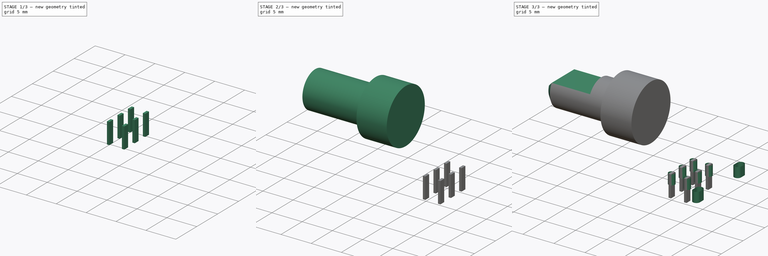
[diagram: build sequence overview — one tinted view per stage of 3, left to right]
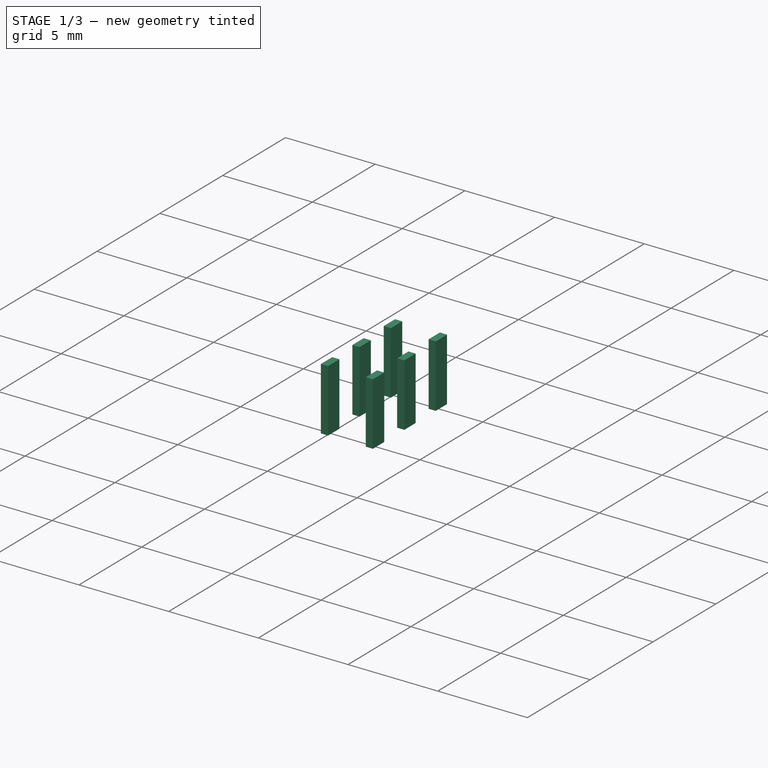
[diagram: stage 1 of 3 — iso view after this stage's code; geometry added in this stage tinted green]
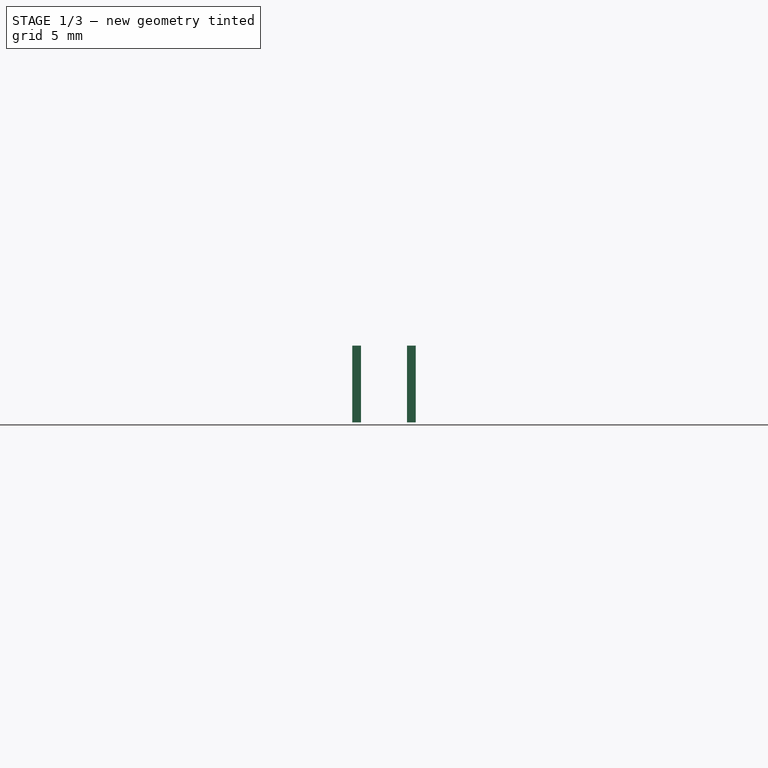
[diagram: stage 1 of 3 — front view after this stage's code; geometry added in this stage tinted green]
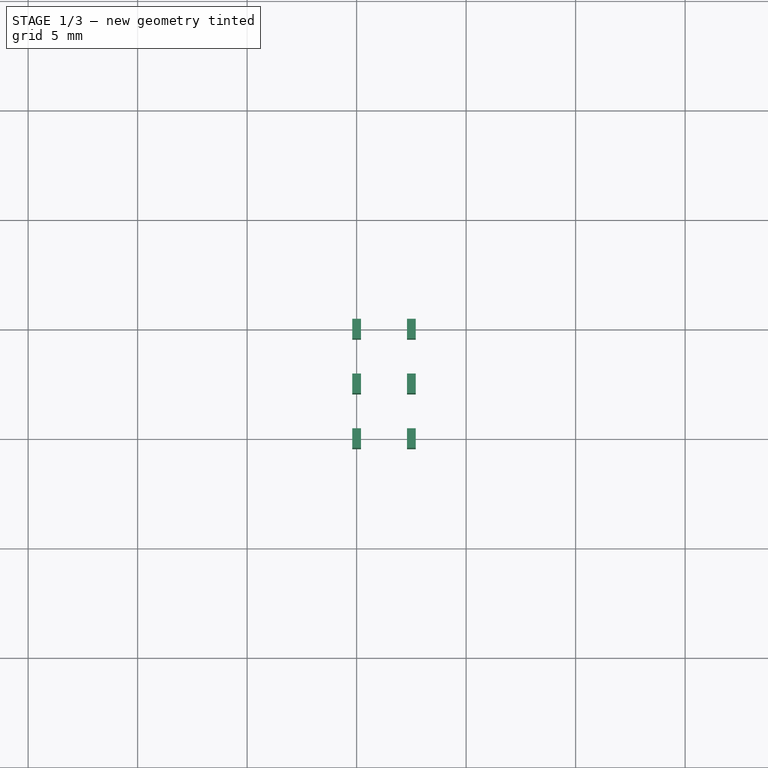
[diagram: stage 1 of 3 — top view after this stage's code; geometry added in this stage tinted green]
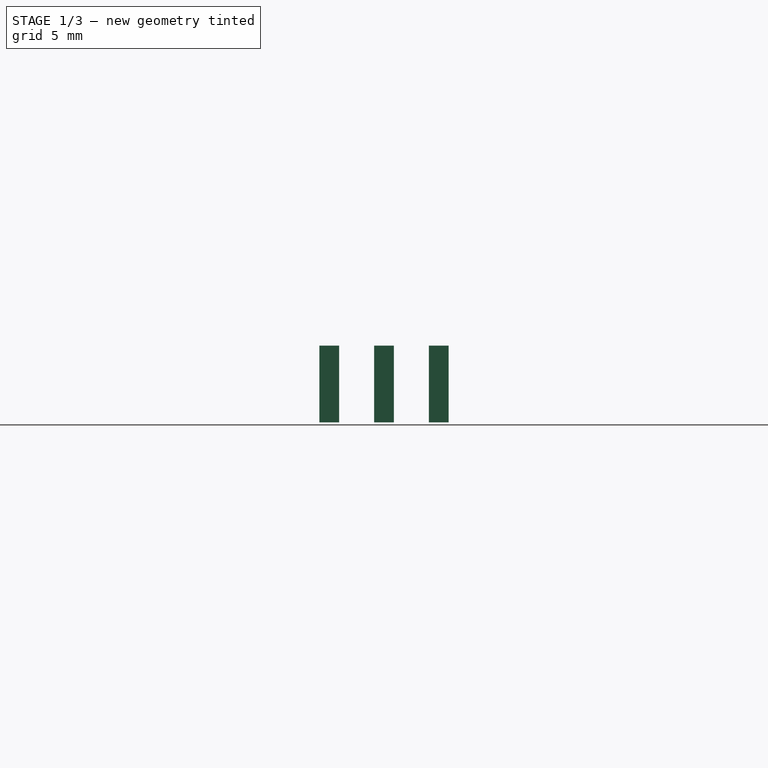
[diagram: stage 1 of 3 — right view after this stage's code; geometry added in this stage tinted green]
FCSTD DOCUMENT  (FreeCAD 0.21R33694 (Git))
Label: Potentiometer-THT-Alps-RK09L
License: All rights reserved
LicenseURL: https://en.wikipedia.org/wiki/All_rights_reserved
objects: Part::Feature×14, Sketcher::SketchObject×8, PartDesign::Pad×4, PartDesign::Body×3, PartDesign::ShapeBinder×2, Part::Compound×1, App::DocumentObjectGroup×1, PartDesign::Pocket×1, PartDesign::Chamfer×1, Part::FeaturePython×1
note: 40 computed .brp shape members not serialized (recipe doc carries the construction recipe); baked Part::Feature solids carry a one-line shape summary decoded from their .brp

FEATURE [Part::Feature] Shape001  label="topPads"
  Placement = pos=(0,0,-0.01) rot=(0,0,1;0rad)
  shape: bbox 7.7 x 12.5 x 0.01 mm, 63 faces, 8 solids (baked)
FEATURE [Part::Feature] Shape002  label="btmPads"
  Placement = pos=(0,0,-1.6) rot=(0,0,1;0rad)
  shape: bbox 7.7 x 12.5 x 0.01 mm, 63 faces, 8 solids (baked)
FEATURE [Part::Feature] Shape  label="F.SilkS_outline_"
  Placement = pos=(0,0,0.01) rot=(0,0,1;0rad)
  shape: bbox 24.5 x 12.46 x 2e-07 mm, 0 faces, 0 solids (baked)
FEATURE [Sketcher::SketchObject] _F_SilkS__sketch  label="F.SilkS_"
  FullyConstrained = false
  Placement = pos=(0,0,0.01) rot=(0,0,1;0rad)
  sketch-geometry (10):
    g0: LineSegment StartX=-20.12 StartY=-5.62 StartZ=0 EndX=-20.12 EndY=0.62 EndZ=0
    g1: LineSegment StartX=-10.12 StartY=0.62 StartZ=0 EndX=-20.12 EndY=0.62 EndZ=0
    g2: LineSegment StartX=-10.12 StartY=-5.62 StartZ=0 EndX=-20.12 EndY=-5.62 EndZ=0
    g3: LineSegment StartX=-10.12 StartY=-7.12 StartZ=0 EndX=-10.12 EndY=2.12 EndZ=0
    g4: LineSegment StartX=-5.12 StartY=2.12 StartZ=0 EndX=-10.12 EndY=2.12 EndZ=0
    g5: LineSegment StartX=-5.12 StartY=-7.12 StartZ=0 EndX=-10.12 EndY=-7.12 EndZ=0
    g6: LineSegment StartX=-5.12 StartY=-8.67 StartZ=0 EndX=-5.12 EndY=3.67 EndZ=0
    g7: LineSegment StartX=3.759 StartY=3.67 StartZ=0 EndX=-5.12 EndY=3.67 EndZ=0
    g8: LineSegment StartX=3.759 StartY=-8.67 StartZ=0 EndX=-5.12 EndY=-8.67 EndZ=0
    g9: LineSegment StartX=4.261 StartY=-4.894 StartZ=0 EndX=4.261 EndY=-0.105 EndZ=0
FEATURE [Part::Feature] Shape003  label="F.CrtYd_outline_"
  Placement = pos=(0,0,0.01) rot=(0,0,1;0rad)
  shape: bbox 28.45 x 14.25 x 2e-07 mm, 0 faces, 0 solids (baked)
FEATURE [Sketcher::SketchObject] _F_CrtYd__sketch  label="F.CrtYd_"
  FullyConstrained = false
  Placement = pos=(0,0,0.01) rot=(0,0,1;0rad)
  sketch-geometry (4):
    g0: LineSegment StartX=-20.25 StartY=4.6 StartZ=0 EndX=-20.25 EndY=-9.6 EndZ=0
    g1: LineSegment StartX=-20.25 StartY=-9.6 StartZ=0 EndX=8.15 EndY=-9.6 EndZ=0
    g2: LineSegment StartX=8.15 StartY=4.6 StartZ=0 EndX=-20.25 EndY=4.6 EndZ=0
    g3: LineSegment StartX=8.15 StartY=-9.6 StartZ=0 EndX=8.15 EndY=4.6 EndZ=0
FEATURE [Part::Feature] Shape004  label="F.Fab_outline_"
  Placement = pos=(0,0,0.01) rot=(0,0,1;0rad)
  shape: bbox 24.24 x 12.2 x 2e-07 mm, 0 faces, 0 solids (baked)
FEATURE [Sketcher::SketchObject] _F_Fab__sketch  label="F.Fab_"
  FullyConstrained = false
  Placement = pos=(0,0,0.01) rot=(0,0,1;0rad)
  sketch-geometry (10):
    g0: LineSegment StartX=-20 StartY=0.5 StartZ=0 EndX=-20 EndY=-5.5 EndZ=0
    g1: LineSegment StartX=-20 StartY=-5.5 StartZ=0 EndX=-10 EndY=-5.5 EndZ=0
    g2: LineSegment StartX=-10 StartY=2 StartZ=0 EndX=-10 EndY=-7 EndZ=0
    g3: LineSegment StartX=-10 StartY=0.5 StartZ=0 EndX=-20 EndY=0.5 EndZ=0
    g4: LineSegment StartX=-10 StartY=-7 StartZ=0 EndX=-5 EndY=-7 EndZ=0
    g5: LineSegment StartX=-5 StartY=3.55 StartZ=0 EndX=-5 EndY=-8.55 EndZ=0
    g6: LineSegment StartX=-5 StartY=2 StartZ=0 EndX=-10 EndY=2 EndZ=0
    g7: LineSegment StartX=-5 StartY=-8.55 StartZ=0 EndX=4.14 EndY=-8.55 EndZ=0
    g8: LineSegment StartX=4.14 StartY=3.55 StartZ=0 EndX=-5 EndY=3.55 EndZ=0
    g9: LineSegment StartX=4.14 StartY=-8.55 StartZ=0 EndX=4.14 EndY=3.55 EndZ=0
FEATURE [Part::Feature] PCB
  shape: bbox 42.68 x 21.38 x 1.58 mm, 28 faces (baked)
FEATURE [App::DocumentObjectGroup] Group  label=""Potentiometer_Alps_RK09L_Double_Horizontal"-fp"
  Group = -> [Shape001,Shape002,annulars,_F_SilkS__sketch,Shape,_F_CrtYd__sketch,Shape003,_F_Fab__sketch,Shape004,PCB]
FEATURE [Sketcher::SketchObject] Sketch  label="Main body"
  FullyConstrained = true
  MapMode = 5
  Support = -> [XY_Plane]
  expr: Constraints[10] = 10.7 / 2 - 5 / 2
  expr: Constraints[12] = 2.5 + 3.3
  expr: Constraints[13] = 12.4 - 1.5
  sketch-geometry (5):
    g0: LineSegment StartX=-5.1 StartY=2.85 StartZ=0 EndX=4.05 EndY=2.85 EndZ=0
    g1: LineSegment StartX=4.05 StartY=2.85 StartZ=0 EndX=4.05 EndY=-7.85 EndZ=0
    g2: LineSegment StartX=4.05 StartY=-7.85 StartZ=0 EndX=-5.1 EndY=-7.85 EndZ=0
    g3: LineSegment StartX=-5.1 StartY=-7.85 StartZ=0 EndX=-5.1 EndY=2.85 EndZ=0
    g4: LineSegment StartX=5.8 StartY=7 StartZ=0 EndX=5.8 EndY=-11 EndZ=0
  constraints (16):
    c: Coincident(g0,g1)
    c: Coincident(g1,g2)
    c: Coincident(g2,g3)
    c: Coincident(g3,g0)
    c: Horizontal(g0)
    c: Horizontal(g2)
    c: Vertical(g1)
    c: Vertical(g3)
    c: DistanceY(g3,g3) = 10.7
    c: DistanceX(g0,g0) = 9.15
    c: DistanceY(g-1,g0) = 2.85
    c: Vertical(g4)
    c: DistanceX(g-1,g4) = 5.8
    c: DistanceX(g0,g4) = 10.9
    c: DistanceY(g4,g4) = 18
    c: DistanceY(g-1,g4) = 7
FEATURE [PartDesign::Pad] Pad
  Direction = (0,0,1)
  Length = 11.35
  Length2 = 10
  Profile = -> Sketch
  ReferenceAxis = -> Sketch [N_Axis]
  Type = 0
  expr: Length = 6.5 + 4.85
FEATURE [PartDesign::Body] Body001  label="Shaft and mounting thread"
  Group = -> [ShapeBinder,Sketch001,Pad001,Sketch002,Pad002,Sketch003,Pocket,Chamfer]
  Origin = -> Origin001
  Tip = -> Chamfer
FEATURE [PartDesign::ShapeBinder] ShapeBinder001
  Support = -> [Pad]
  TraceSupport = false
FEATURE [Sketcher::SketchObject] Sketch004
  FullyConstrained = true
  MapMode = 5
  Placement = pos=(0,0,0) rot=(1,0,0;3.14159rad)
  Support = -> [ShapeBinder001]
  expr: Constraints[10] = 0.4 / 2
  expr: Constraints[11] = 0.9 / 2
  sketch-geometry (4):
    g0: LineSegment StartX=-0.2 StartY=0.45 StartZ=0 EndX=0.2 EndY=0.45 EndZ=0
    g1: LineSegment StartX=0.2 StartY=0.45 StartZ=0 EndX=0.2 EndY=-0.45 EndZ=0
    g2: LineSegment StartX=0.2 StartY=-0.45 StartZ=0 EndX=-0.2 EndY=-0.45 EndZ=0
    g3: LineSegment StartX=-0.2 StartY=-0.45 StartZ=0 EndX=-0.2 EndY=0.45 EndZ=0
  constraints (12):
    c: Coincident(g0,g1)
    c: Coincident(g1,g2)
    c: Coincident(g2,g3)
    c: Coincident(g3,g0)
    c: Horizontal(g0)
    c: Horizontal(g2)
    c: Vertical(g1)
    c: Vertical(g3)
    c: DistanceY(g1,g1) = 0.9
    c: DistanceX(g2,g2) = 0.4
    c: DistanceX(g-1,g1) = 0.2
    c: DistanceY(g1,g-1) = 0.45
FEATURE [PartDesign::Pad] Pad003
  Direction = (0,0,-1)
  Length = 3.5
  Length2 = 10
  Profile = -> Sketch004
  ReferenceAxis = -> Sketch004 [N_Axis]
  Type = 0
FEATURE [PartDesign::Body] Body002  label="Pin1"
  Group = -> [ShapeBinder001,Sketch004,Pad003]
  Origin = -> Origin002
  Tip = -> Pad003
FEATURE [Part::FeaturePython] Array  label="Pins"  # Draft array (typed FeaturePython)
  AlwaysSyncPlacement = false
  Angle = 360
  ArrayType = 0
  Axis = (0,0,1)
  Base = -> Pad003
  Center = (0,0,0)
  Count = 6
  ExpandArray = false
  Fuse = false
  IntervalAxis = (0,0,0)
  IntervalX = (2.5,0,0)
  IntervalY = (0,-2.5,0)
  IntervalZ = (0,0,100)
  NumberCircles = 3
  NumberPolar = 5
  NumberX = 2
  NumberY = 3
  NumberZ = 1
  PlacementList = 6 placements: [(0,0,0),(0,-2.5,0),(0,-5,0),(2.5,0,0),(2.5,-2.5,0),(2.5,-5,0)]
  RadialDistance = 50
  ScaleList = (6) [(1,1,1),(1,1,1),(1,1,1),(1,1,1),(1,1,1),(1,1,1)]
  Symmetry = 1
  TangentialDistance = 25
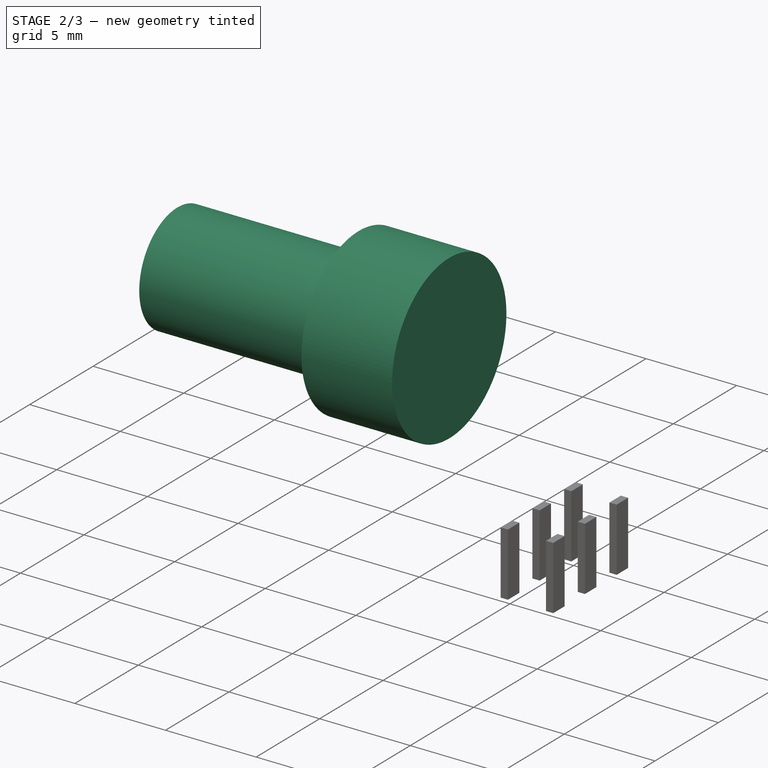
[diagram: stage 2 of 3 — iso view after this stage's code; geometry added in this stage tinted green]
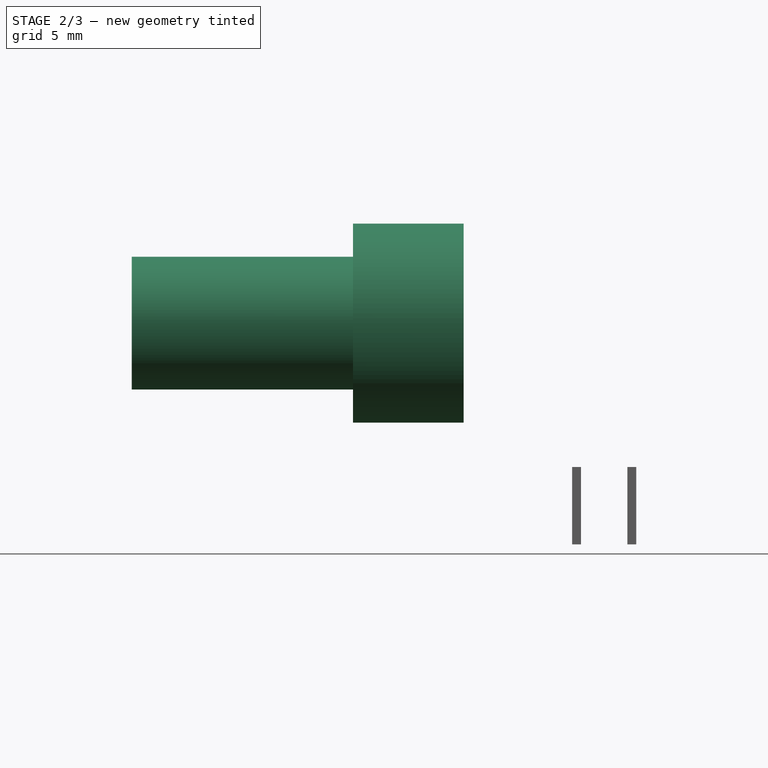
[diagram: stage 2 of 3 — front view after this stage's code; geometry added in this stage tinted green]
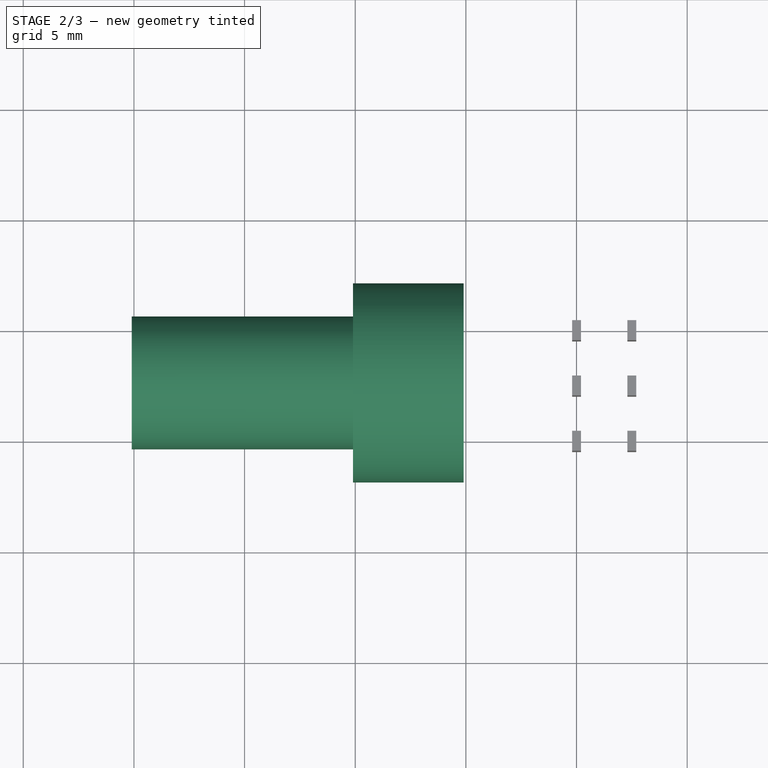
[diagram: stage 2 of 3 — top view after this stage's code; geometry added in this stage tinted green]
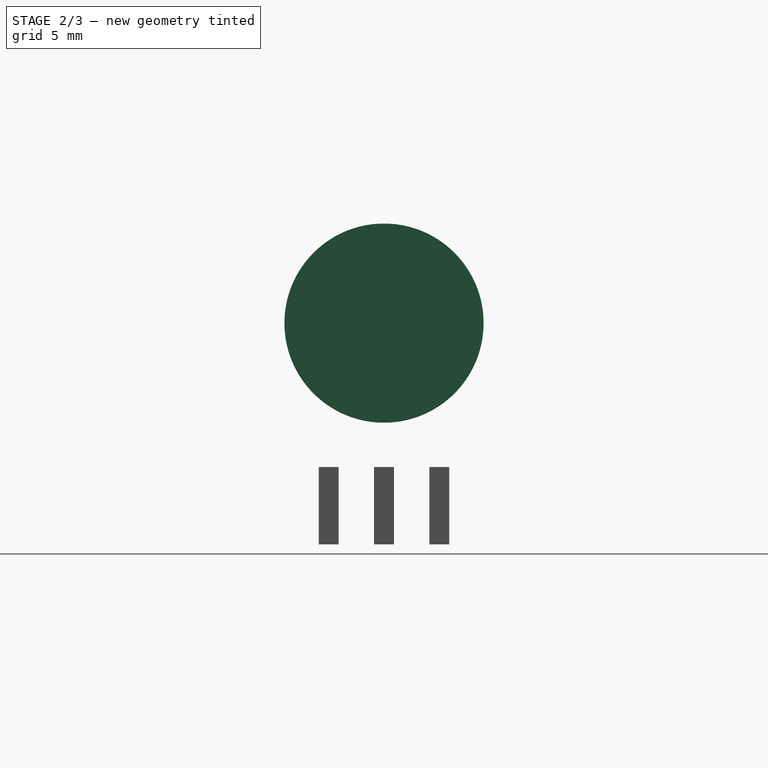
[diagram: stage 2 of 3 — right view after this stage's code; geometry added in this stage tinted green]
FEATURE [PartDesign::Body] Body
  Group = -> [Sketch,Pad]
  Origin = -> Origin
  Tip = -> Pad
FEATURE [PartDesign::ShapeBinder] ShapeBinder
  Support = -> [Pad]
  TraceSupport = false
FEATURE [Sketcher::SketchObject] Sketch001  label="Mounting thread"
  ExternalGeometry = -> [ShapeBinder]
  FullyConstrained = true
  MapMode = 5
  Placement = pos=(-5.1,0,0) rot=(0.57735,-0.57735,-0.57735;2.0944rad)
  Support = -> [ShapeBinder]
  expr: Constraints[0] = 10.7 / 2
  sketch-geometry (1):
    g0: Circle CenterX=2.5 CenterY=6.5 CenterZ=0 NormalX=0 NormalY=0 NormalZ=1 AngleXU=0 Radius=4.5
  constraints (3):
    c: DistanceX(g0,g-3) = 5.35
    c: DistanceY(g0,g-3) = 4.85
    c: Diameter(g0) = 9
FEATURE [PartDesign::Pad] Pad001
  Direction = (-1,0,0)
  Length = 5
  Length2 = 10
  Profile = -> Sketch001
  ReferenceAxis = -> Sketch001 [N_Axis]
  Type = 0
FEATURE [Sketcher::SketchObject] Sketch002  label="Shaft"
  ExternalGeometry = -> [Pad001]
  FullyConstrained = true
  MapMode = 5
  Placement = pos=(-10.1,0,0) rot=(0.57735,-0.57735,-0.57735;2.0944rad)
  Support = -> [Pad001]
  sketch-geometry (1):
    g0: Circle CenterX=2.5 CenterY=6.5 CenterZ=0 NormalX=0 NormalY=0 NormalZ=1 AngleXU=0 Radius=3
  constraints (2):
    c: Diameter(g0) = 6
    c: Coincident(g0,g-3)
FEATURE [PartDesign::Pad] Pad002
  BaseFeature = -> Pad001
  Direction = (-1,0,0)
  Length = 10
  Length2 = 10
  Profile = -> Sketch002
  ReferenceAxis = -> Sketch002 [N_Axis]
  Type = 0
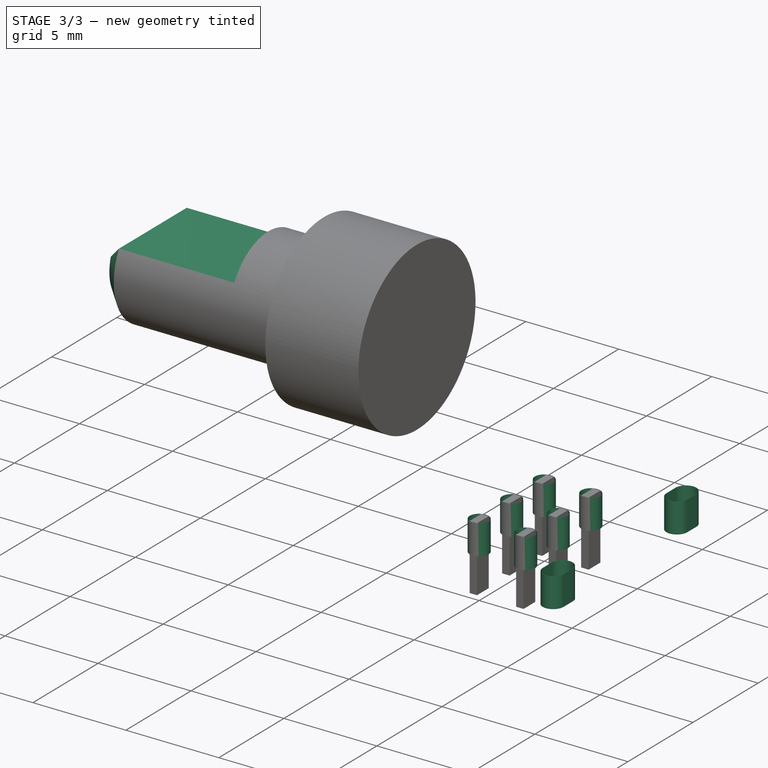
[diagram: stage 3 of 3 — iso view after this stage's code; geometry added in this stage tinted green]
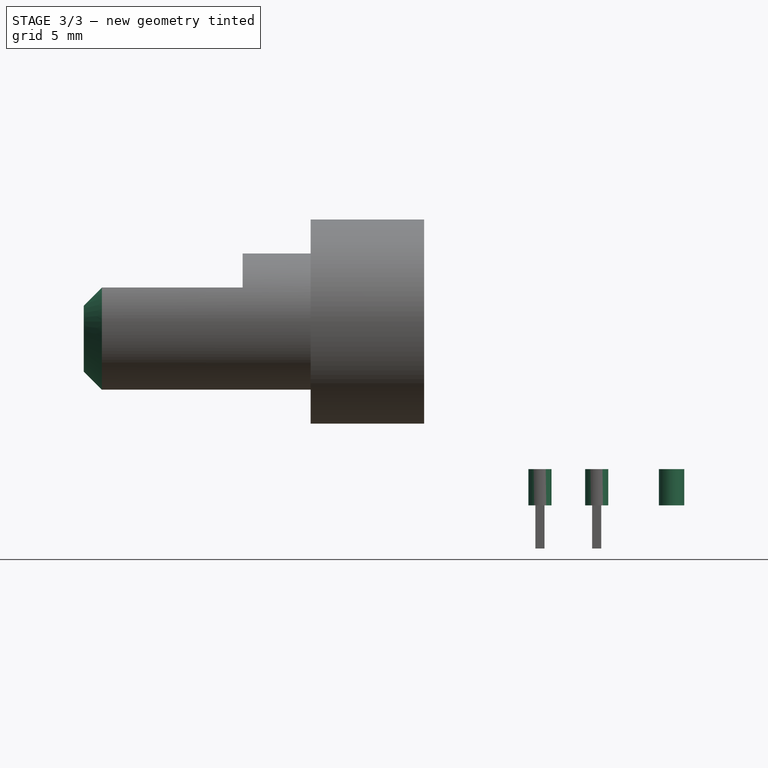
[diagram: stage 3 of 3 — front view after this stage's code; geometry added in this stage tinted green]
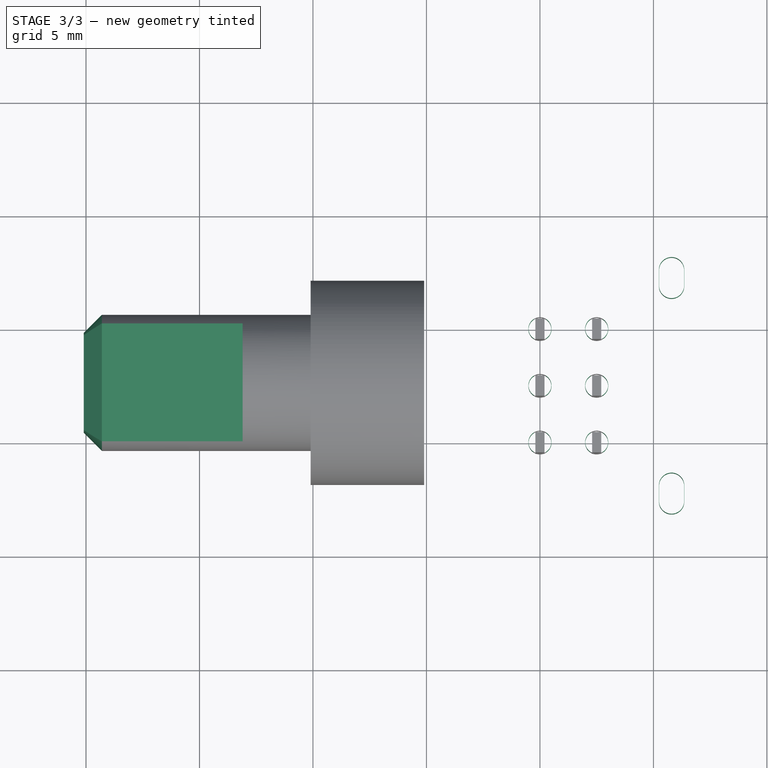
[diagram: stage 3 of 3 — top view after this stage's code; geometry added in this stage tinted green]
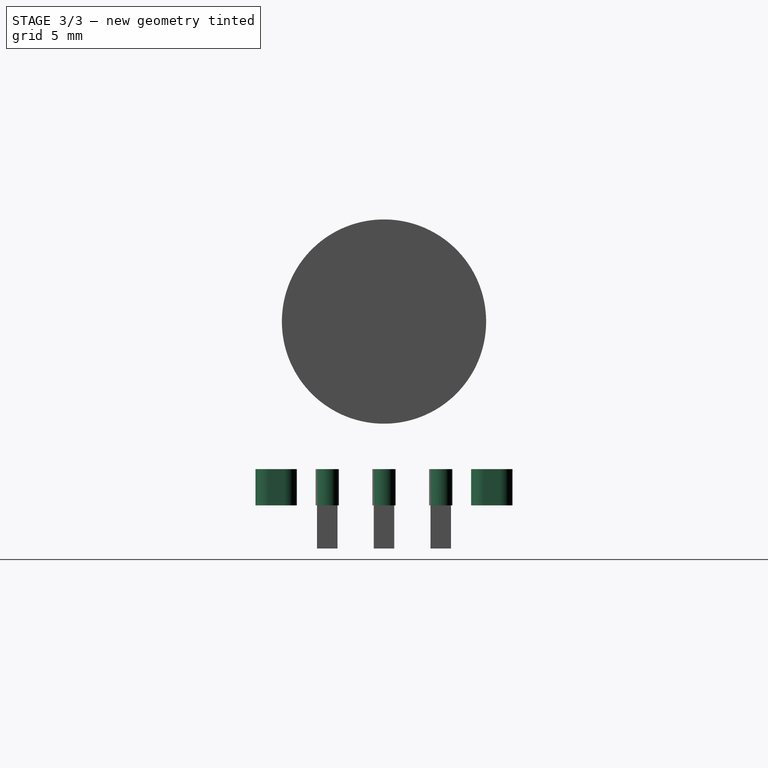
[diagram: stage 3 of 3 — right view after this stage's code; geometry added in this stage tinted green]
FEATURE [Part::Feature] anr_  label="drill_000"
  shape: bbox 1.12 x 1.82 x 1.6 mm, 10 faces (baked)
FEATURE [Part::Feature] anr_001  label="drill_001"
  shape: bbox 1.12 x 1.82 x 1.6 mm, 10 faces (baked)
FEATURE [Part::Feature] anr_002  label="drill_002"
  shape: bbox 1.02 x 1.02 x 1.6 mm, 4 faces (baked)
FEATURE [Part::Feature] anr_003  label="drill_003"
  shape: bbox 1.02 x 1.02 x 1.6 mm, 4 faces (baked)
FEATURE [Part::Feature] anr_004  label="drill_004"
  shape: bbox 1.02 x 1.02 x 1.6 mm, 4 faces (baked)
FEATURE [Part::Feature] anr_005  label="drill_005"
  shape: bbox 1.02 x 1.02 x 1.6 mm, 4 faces (baked)
FEATURE [Part::Feature] anr_006  label="drill_006"
  shape: bbox 1.02 x 1.02 x 1.6 mm, 4 faces (baked)
FEATURE [Part::Feature] anr_007  label="drill_007"
  shape: bbox 1.02 x 1.02 x 1.6 mm, 4 faces (baked)
FEATURE [Part::Compound] annulars  label="TH-Drills"
  Links = -> [anr_,anr_001,anr_002,anr_003,anr_004,anr_005,anr_006,anr_007]
FEATURE [Sketcher::SketchObject] Sketch003
  ExternalGeometry = -> [Pad002]
  FullyConstrained = true
  MapMode = 5
  Placement = pos=(-20.1,0,0) rot=(0.57735,-0.57735,-0.57735;2.0944rad)
  Support = -> [Pad002]
  expr: Constraints[11] = 9 / 2
  expr: Constraints[9] = 4.5 - 6 / 2
  sketch-geometry (4):
    g0: LineSegment StartX=-2 StartY=11 StartZ=0 EndX=7 EndY=11 EndZ=0
    g1: LineSegment StartX=7 StartY=11 StartZ=0 EndX=7 EndY=8 EndZ=0
    g2: LineSegment StartX=7 StartY=8 StartZ=0 EndX=-2 EndY=8 EndZ=0
    g3: LineSegment StartX=-2 StartY=8 StartZ=0 EndX=-2 EndY=11 EndZ=0
  constraints (12):
    c: Coincident(g0,g1)
    c: Coincident(g1,g2)
    c: Coincident(g2,g3)
    c: Coincident(g3,g0)
    c: Horizontal(g0)
    c: Horizontal(g2)
    c: Vertical(g1)
    c: Vertical(g3)
    c: DistanceY(g1,g1) = 3
    c: DistanceY(g-3,g1) = 1.5
    c: DistanceX(g0,g0) = 9
    c: DistanceX(g2,g-3) = 4.5
FEATURE [PartDesign::Pocket] Pocket
  BaseFeature = -> Pad002
  Direction = (1,0,0)
  Length = 7
  Length2 = 5
  Profile = -> Sketch003
  ReferenceAxis = -> Sketch003 [N_Axis]
  Type = 0
FEATURE [PartDesign::Chamfer] Chamfer
  Angle = 45
  Base = -> Pocket [Face5]
  BaseFeature = -> Pocket
  ChamferType = 0
  FlipDirection = false
  Size = 0.8
  Size2 = 1
  SupportTransform = false
  UseAllEdges = false
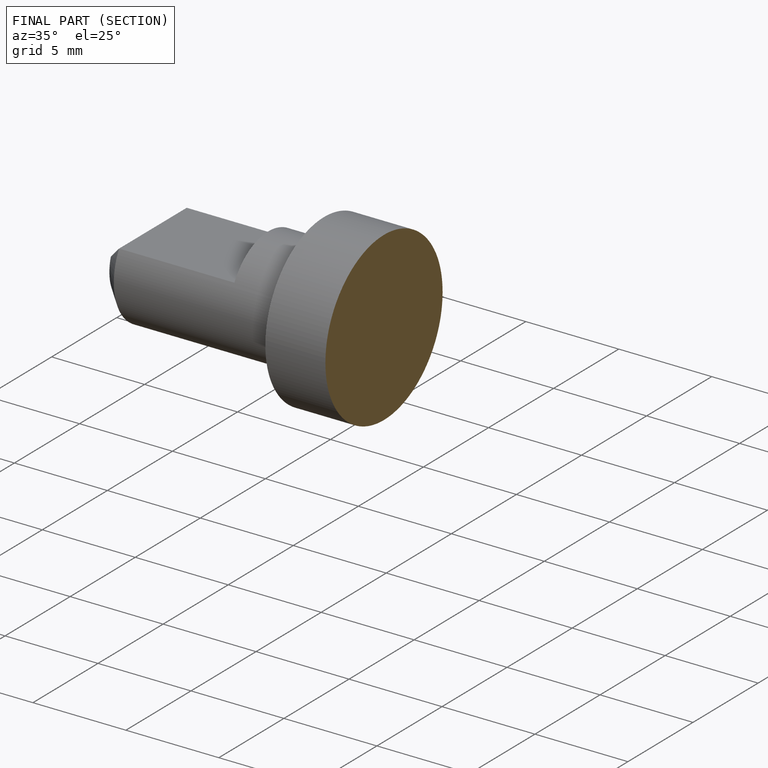
[diagram: finished part — half-section view (interior)]
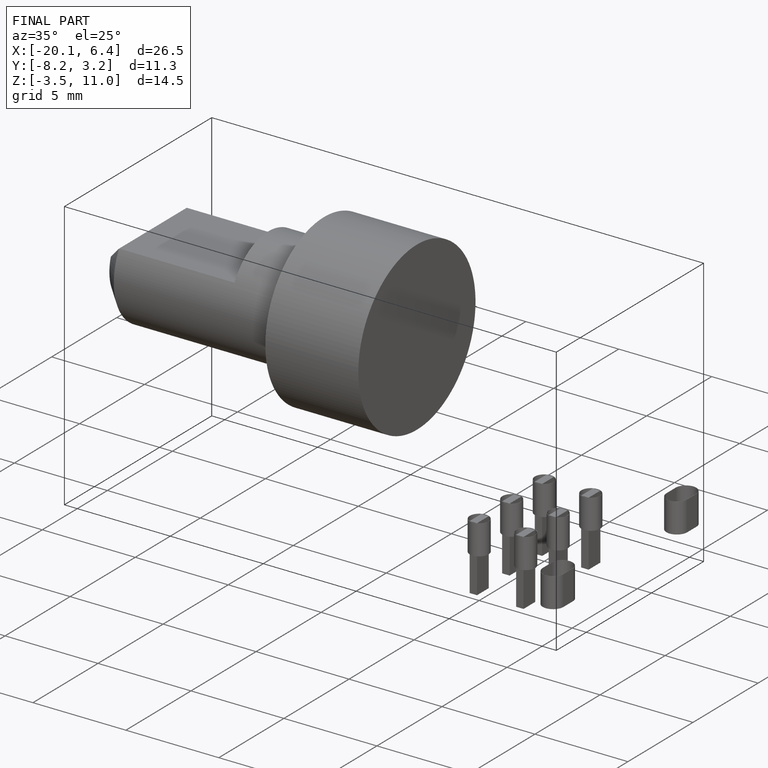
[diagram: finished part — iso view with bounding-box wireframe]
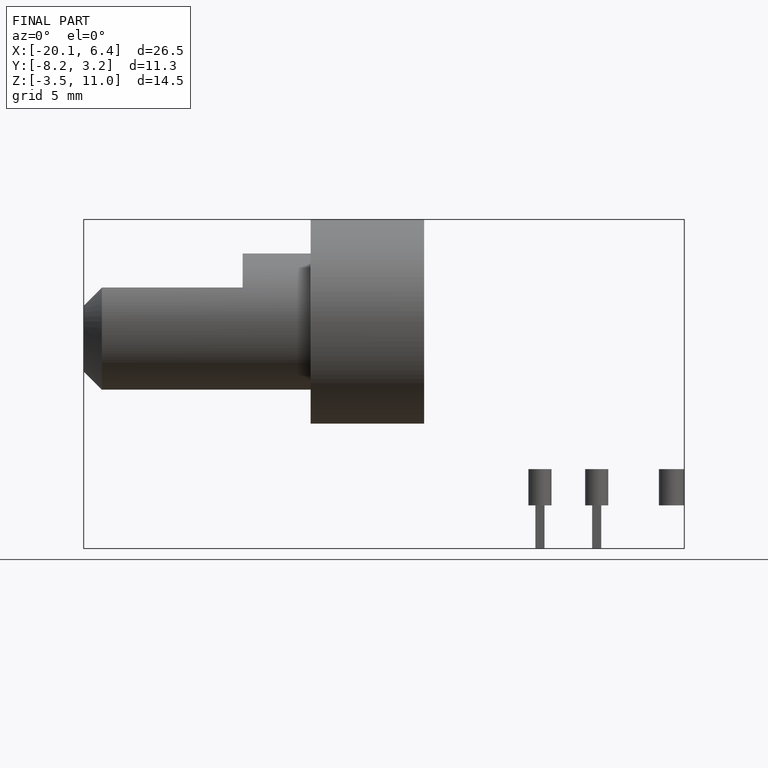
[diagram: finished part — front view with bounding-box wireframe]
